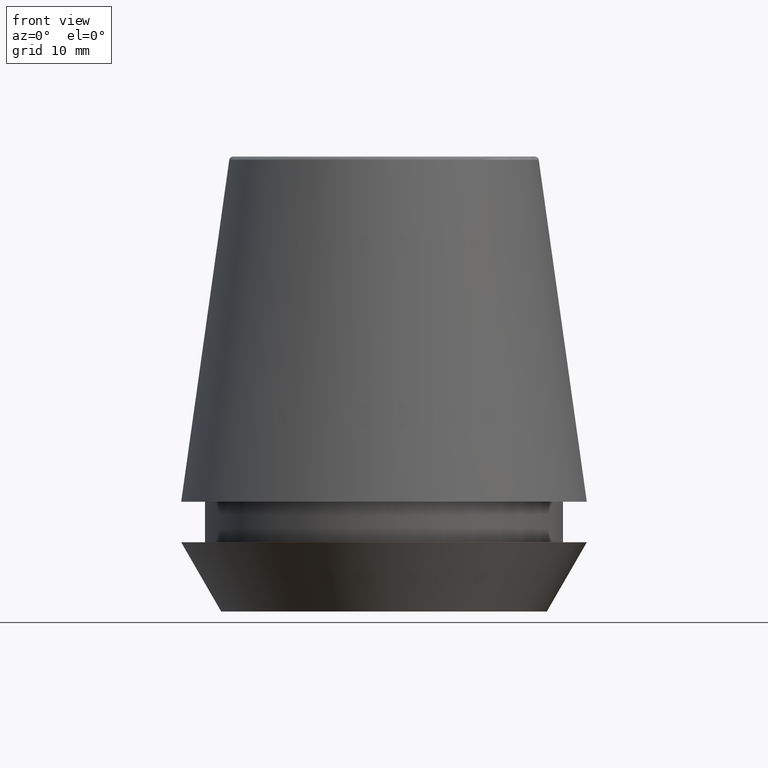
[diagram: clean part render]
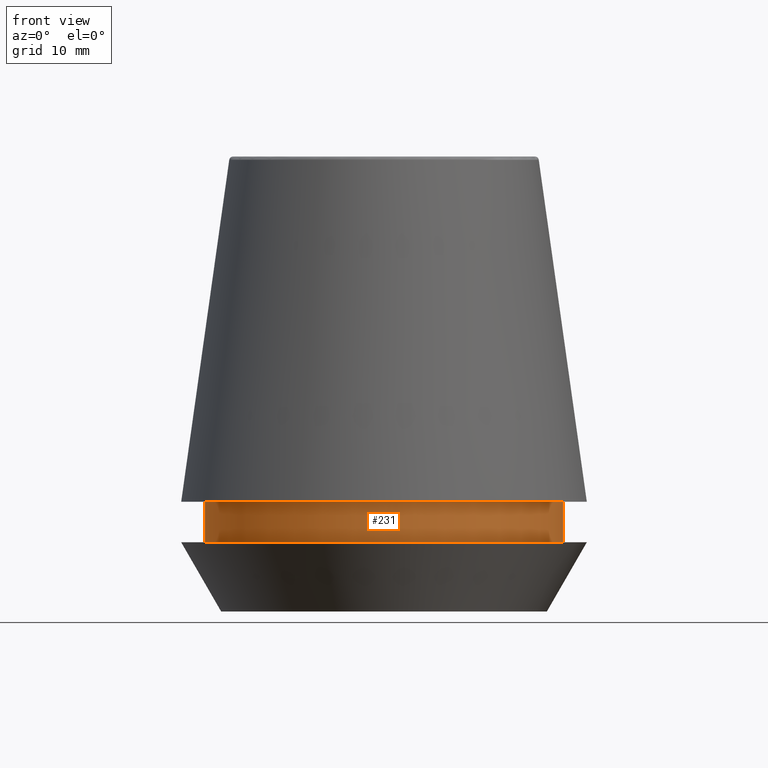
[diagram: same view with one face highlighted and labeled with its STEP entity id]
A machine part, front view. The second image highlights one B-rep face of the part: STEP entity #231.
In plain terms, the highlighted cylindrical surface (partial cylindrical patch) has radius 18.1 mm, axis along (-0, -0, 1).
Its self-contained STEP definition (entity closure, byte-faithful):
#5 = CARTESIAN_POINT ( 'NONE',  ( 18.10000000000000500, 0.0000000000000000000, 11.09999999999999800 ) ) ;
#34 = ORIENTED_EDGE ( 'NONE', *, *, #167, .T. ) ;
#45 = VECTOR ( 'NONE', #233, 1000.000000000000000 ) ;
#49 = CARTESIAN_POINT ( 'NONE',  ( 0.0000000000000000000, 0.0000000000000000000, 46.00000000000000000 ) ) ;
#57 = ORIENTED_EDGE ( 'NONE', *, *, #156, .F. ) ;
#61 = CARTESIAN_POINT ( 'NONE',  ( 0.0000000000000000000, 0.0000000000000000000, 11.09999999999999800 ) ) ;
#72 = ORIENTED_EDGE ( 'NONE', *, *, #125, .T. ) ;
#79 = EDGE_LOOP ( 'NONE', ( #296, #34, #72, #57 ) ) ;
#82 = CARTESIAN_POINT ( 'NONE',  ( -18.10000000000000500, 2.216610706456710000E-015, 46.00000000000000000 ) ) ;
#87 = DIRECTION ( 'NONE',  ( -0.0000000000000000000, -0.0000000000000000000, 1.000000000000000000 ) ) ;
#95 = DIRECTION ( 'NONE',  ( 1.000000000000000000, 0.0000000000000000000, 0.0000000000000000000 ) ) ;
#109 = LINE ( 'NONE', #291, #45 ) ;
#114 = VERTEX_POINT ( 'NONE', #265 ) ;
#125 = EDGE_CURVE ( 'NONE', #319, #243, #109, .T. ) ;
#128 = DIRECTION ( 'NONE',  ( -0.0000000000000000000, -0.0000000000000000000, 1.000000000000000000 ) ) ;
#140 = DIRECTION ( 'NONE',  ( 1.000000000000000000, 0.0000000000000000000, 0.0000000000000000000 ) ) ;
#156 = EDGE_CURVE ( 'NONE', #172, #243, #186, .T. ) ;
#167 = EDGE_CURVE ( 'NONE', #114, #319, #170, .T. ) ;
#168 = CARTESIAN_POINT ( 'NONE',  ( -18.10000000000000500, 2.216610706456710000E-015, 11.09999999999999800 ) ) ;
#170 = CIRCLE ( 'NONE', #288, 18.10000000000000100 ) ;
#172 = VERTEX_POINT ( 'NONE', #168 ) ;
#186 = CIRCLE ( 'NONE', #376, 18.10000000000000500 ) ;
#228 = DIRECTION ( 'NONE',  ( -0.0000000000000000000, -0.0000000000000000000, 1.000000000000000000 ) ) ;
#231 = ADVANCED_FACE ( 'NONE', ( #332 ), #283, .T. ) ;
#232 = LINE ( 'NONE', #82, #344 ) ;
#233 = DIRECTION ( 'NONE',  ( -0.0000000000000000000, -0.0000000000000000000, 1.000000000000000000 ) ) ;
#243 = VERTEX_POINT ( 'NONE', #5 ) ;
#265 = CARTESIAN_POINT ( 'NONE',  ( -18.10000000000000100, 2.216610706456709600E-015, 6.999999999999999100 ) ) ;
#274 = AXIS2_PLACEMENT_3D ( 'NONE', #49, #87, #281 ) ;
#281 = DIRECTION ( 'NONE',  ( 1.000000000000000000, 0.0000000000000000000, 0.0000000000000000000 ) ) ;
#283 = CYLINDRICAL_SURFACE ( 'NONE', #274, 18.10000000000000500 ) ;
#288 = AXIS2_PLACEMENT_3D ( 'NONE', #328, #228, #95 ) ;
#291 = CARTESIAN_POINT ( 'NONE',  ( 18.10000000000000500, 0.0000000000000000000, 46.00000000000000000 ) ) ;
#296 = ORIENTED_EDGE ( 'NONE', *, *, #297, .F. ) ;
#297 = EDGE_CURVE ( 'NONE', #114, #172, #232, .T. ) ;
#308 = DIRECTION ( 'NONE',  ( -0.0000000000000000000, -0.0000000000000000000, 1.000000000000000000 ) ) ;
#319 = VERTEX_POINT ( 'NONE', #350 ) ;
#328 = CARTESIAN_POINT ( 'NONE',  ( 0.0000000000000000000, 0.0000000000000000000, 6.999999999999999100 ) ) ;
#332 = FACE_OUTER_BOUND ( 'NONE', #79, .T. ) ;
#344 = VECTOR ( 'NONE', #128, 1000.000000000000000 ) ;
#350 = CARTESIAN_POINT ( 'NONE',  ( 18.10000000000000100, 0.0000000000000000000, 6.999999999999999100 ) ) ;
#376 = AXIS2_PLACEMENT_3D ( 'NONE', #61, #308, #140 ) ;